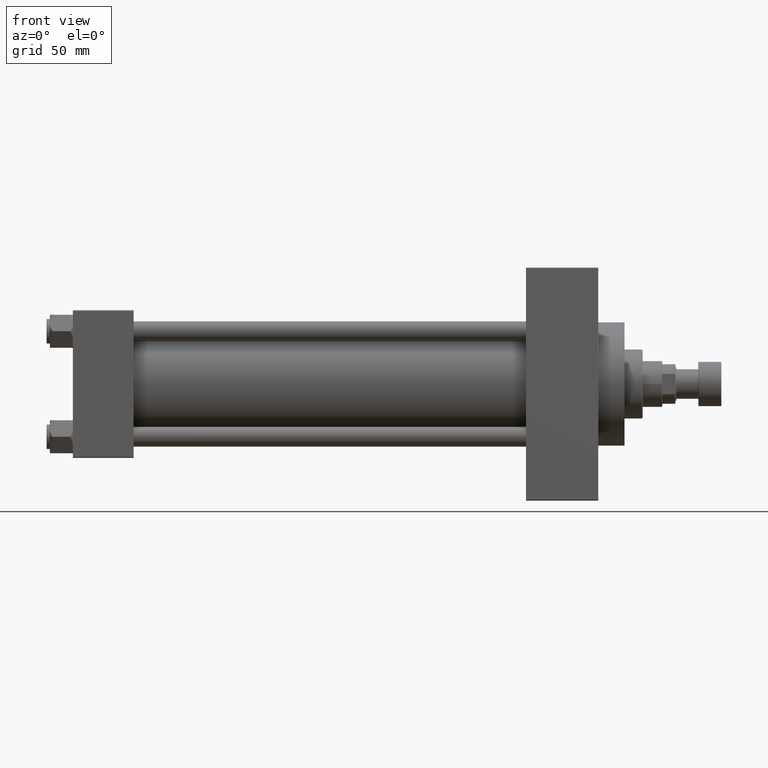
[diagram: clean part render]
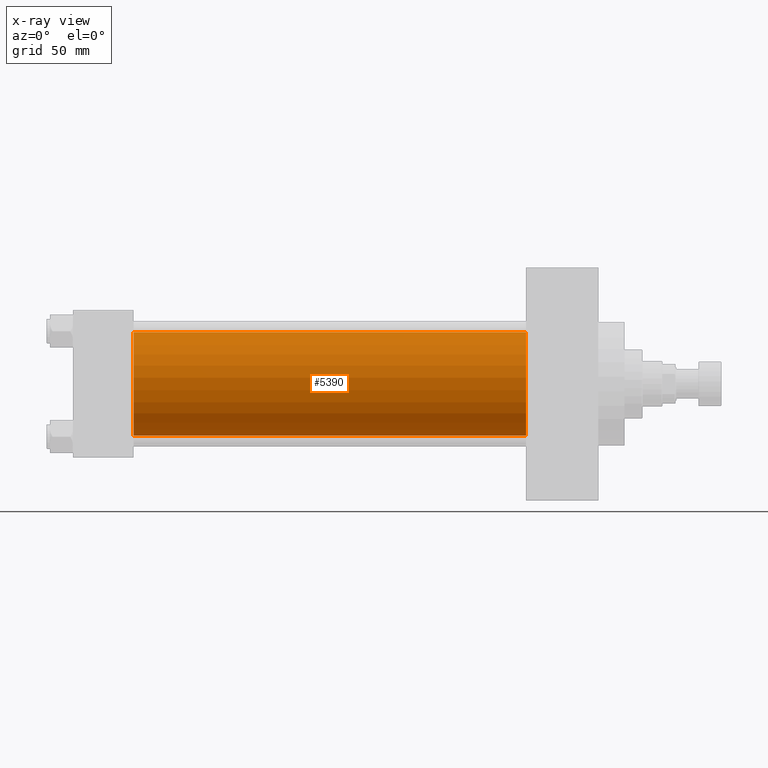
[diagram: x-ray — body ghosted, one internal face saturated and labeled with its STEP entity id]
A machine part, front view, then the same camera in x-ray: the body is ghosted and one INTERNAL B-rep face — a face not visible from any outside direction — is saturated and labeled: STEP entity #5390.
In plain terms, the highlighted cylindrical surface (partial cylindrical patch) has radius 31.5 mm, axis along (-1, -0, -0).
Its self-contained STEP definition (entity closure, byte-faithful):
#1286 = VECTOR ( 'NONE', #8369, 1000.000000000000000 ) ;
#5250 = DIRECTION ( 'NONE',  ( 0.000000000000000000, 0.000000000000000000, -1.000000000000000000 ) ) ;
#5390 = ADVANCED_FACE ( 'NONE', ( #15387 ), #46106, .F. ) ;
#7257 = EDGE_CURVE ( 'NONE', #14286, #32614, #10789, .T. ) ;
#7862 = DIRECTION ( 'NONE',  ( 0.000000000000000000, 0.000000000000000000, 1.000000000000000000 ) ) ;
#8369 = DIRECTION ( 'NONE',  ( -1.000000000000000000, -0.000000000000000000, -0.000000000000000000 ) ) ;
#8556 = CARTESIAN_POINT ( 'NONE',  ( 275.9999999999999432, -2.602085213965210642E-15, 0.000000000000000000 ) ) ;
#8773 = EDGE_CURVE ( 'NONE', #20854, #14286, #27291, .T. ) ;
#8996 = CARTESIAN_POINT ( 'NONE',  ( 37.00000000000000000, -2.602085213965210642E-15, 0.000000000000000000 ) ) ;
#10789 = CIRCLE ( 'NONE', #16437, 31.50000000000000000 ) ;
#11621 = CARTESIAN_POINT ( 'NONE',  ( 275.9999999999999432, -2.602085213965210642E-15, 0.000000000000000000 ) ) ;
#12553 = AXIS2_PLACEMENT_3D ( 'NONE', #8556, #31215, #12822 ) ;
#12822 = DIRECTION ( 'NONE',  ( 0.000000000000000000, 0.000000000000000000, -1.000000000000000000 ) ) ;
#14286 = VERTEX_POINT ( 'NONE', #48741 ) ;
#15387 = FACE_OUTER_BOUND ( 'NONE', #49441, .T. ) ;
#16437 = AXIS2_PLACEMENT_3D ( 'NONE', #8996, #24357, #5250 ) ;
#20407 = VERTEX_POINT ( 'NONE', #45481 ) ;
#20854 = VERTEX_POINT ( 'NONE', #37731 ) ;
#22771 = ORIENTED_EDGE ( 'NONE', *, *, #29403, .T. ) ;
#24357 = DIRECTION ( 'NONE',  ( 1.000000000000000000, 0.000000000000000000, 0.000000000000000000 ) ) ;
#27291 = LINE ( 'NONE', #32057, #42993 ) ;
#28028 = CARTESIAN_POINT ( 'NONE',  ( 275.9999999999999432, 1.255552203348951061E-15, -31.50000000000000000 ) ) ;
#29403 = EDGE_CURVE ( 'NONE', #20854, #20407, #34263, .T. ) ;
#31215 = DIRECTION ( 'NONE',  ( 1.000000000000000000, 0.000000000000000000, 0.000000000000000000 ) ) ;
#31368 = ORIENTED_EDGE ( 'NONE', *, *, #8773, .F. ) ;
#31387 = ORIENTED_EDGE ( 'NONE', *, *, #7257, .F. ) ;
#31792 = LINE ( 'NONE', #28028, #1286 ) ;
#32057 = CARTESIAN_POINT ( 'NONE',  ( 275.9999999999999432, -2.602085213965210642E-15, 31.50000000000000000 ) ) ;
#32614 = VERTEX_POINT ( 'NONE', #46384 ) ;
#34263 = CIRCLE ( 'NONE', #12553, 31.50000000000000000 ) ;
#34864 = ORIENTED_EDGE ( 'NONE', *, *, #49750, .T. ) ;
#35820 = DIRECTION ( 'NONE',  ( -1.000000000000000000, -0.000000000000000000, -0.000000000000000000 ) ) ;
#37731 = CARTESIAN_POINT ( 'NONE',  ( 275.9999999999999432, -2.602085213965210642E-15, 31.50000000000000000 ) ) ;
#39019 = AXIS2_PLACEMENT_3D ( 'NONE', #11621, #42337, #7862 ) ;
#42337 = DIRECTION ( 'NONE',  ( -1.000000000000000000, -0.000000000000000000, -0.000000000000000000 ) ) ;
#42993 = VECTOR ( 'NONE', #35820, 1000.000000000000000 ) ;
#45481 = CARTESIAN_POINT ( 'NONE',  ( 275.9999999999999432, 1.255552203348951061E-15, -31.50000000000000000 ) ) ;
#46106 = CYLINDRICAL_SURFACE ( 'NONE', #39019, 31.50000000000000000 ) ;
#46384 = CARTESIAN_POINT ( 'NONE',  ( 37.00000000000000000, 1.255552203348951061E-15, -31.50000000000000000 ) ) ;
#48741 = CARTESIAN_POINT ( 'NONE',  ( 37.00000000000000000, -2.602085213965210642E-15, 31.50000000000000000 ) ) ;
#49441 = EDGE_LOOP ( 'NONE', ( #22771, #34864, #31387, #31368 ) ) ;
#49750 = EDGE_CURVE ( 'NONE', #20407, #32614, #31792, .T. ) ;